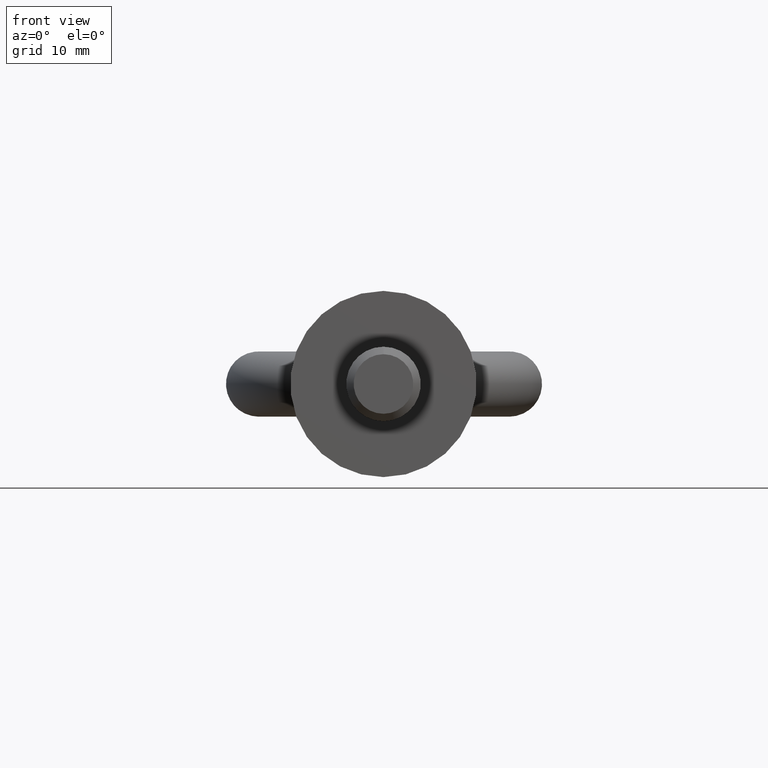
[diagram: clean part render]
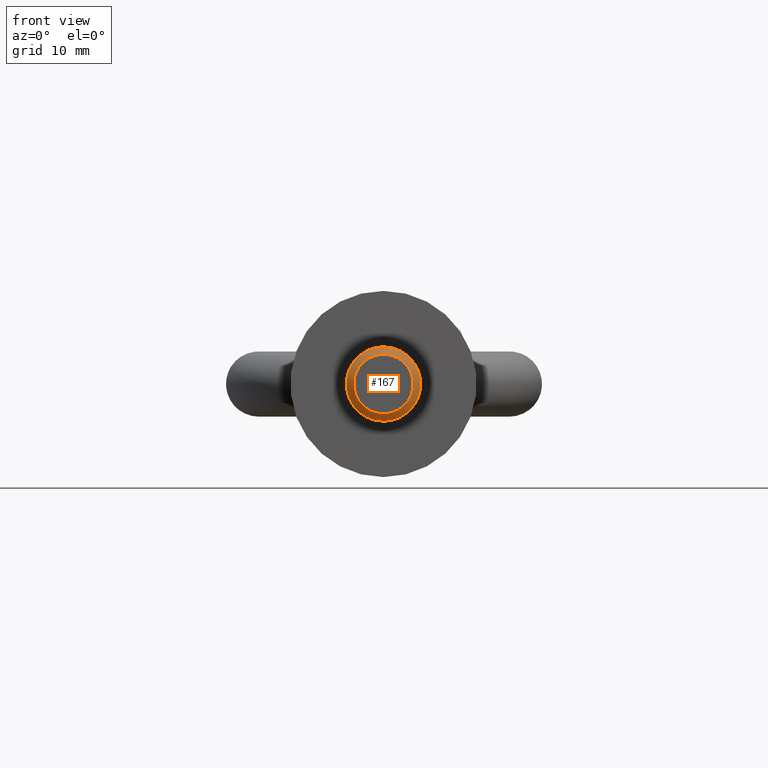
[diagram: same view with one face highlighted and labeled with its STEP entity id]
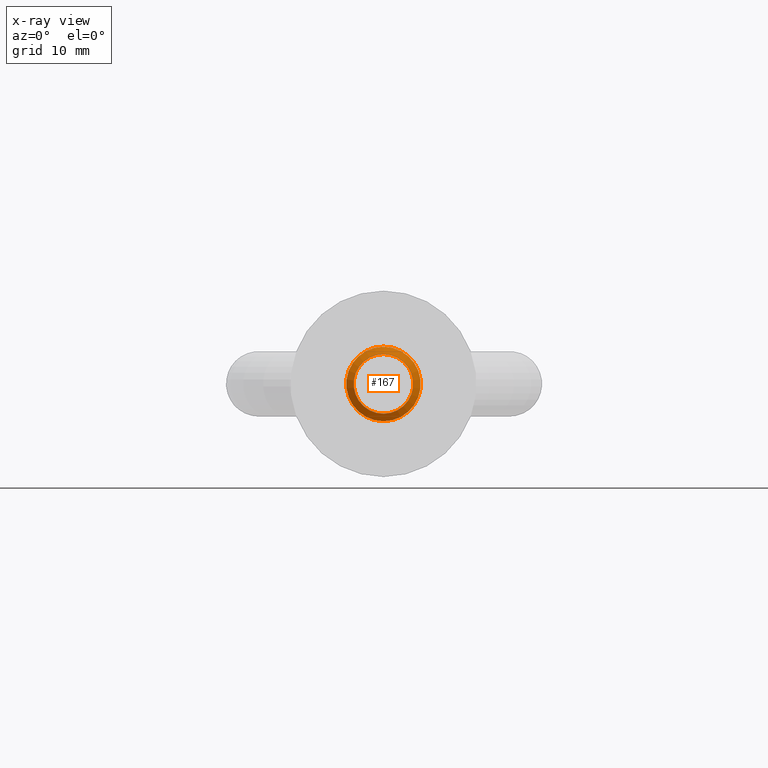
[diagram: x-ray of the same camera — body ghosted, the highlighted face saturated]
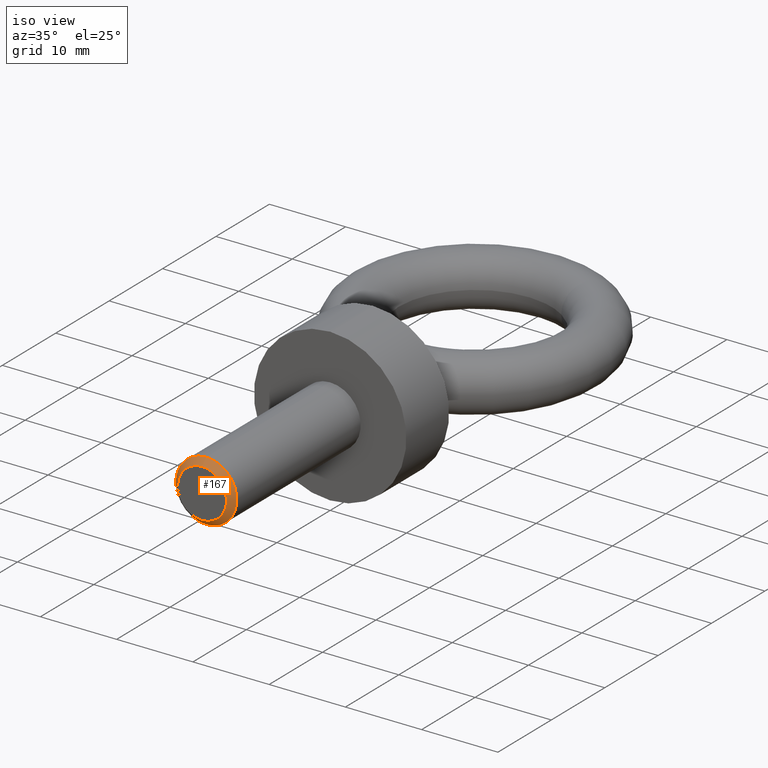
[diagram: same view with one face highlighted and labeled with its STEP entity id]
A machine part, front view. The second image highlights one B-rep face of the part: STEP entity #167.
The next image is the same camera in x-ray: the body ghosted, the highlighted face saturated — about 0% of this face is hidden behind the body in this view.
A second angle (iso view) of the same face is appended — the face is thin or edge-on in the first view.
In plain terms, the highlighted conical surface has half-angle 45 deg.
Its self-contained STEP definition (entity closure, byte-faithful):
#78=CONICAL_SURFACE('',#677,4.,45.);
#90=FACE_BOUND('',#250,.T.);
#91=FACE_BOUND('',#251,.T.);
#167=ADVANCED_FACE('',(#90,#91),#78,.T.);
#250=EDGE_LOOP('',(#481));
#251=EDGE_LOOP('',(#482));
#294=CIRCLE('',#640,3.2);
#295=CIRCLE('',#642,4.);
#481=ORIENTED_EDGE('',*,*,#564,.F.);
#482=ORIENTED_EDGE('',*,*,#565,.F.);
#507=VERTEX_POINT('',#1036);
#508=VERTEX_POINT('',#1039);
#564=EDGE_CURVE('',#507,#507,#294,.T.);
#565=EDGE_CURVE('',#508,#508,#295,.T.);
#640=AXIS2_PLACEMENT_3D('',#1035,#718,#719);
#642=AXIS2_PLACEMENT_3D('',#1038,#722,#723);
#677=AXIS2_PLACEMENT_3D('',#1556,#794,#795);
#718=DIRECTION('',(0.,-1.,0.));
#719=DIRECTION('',(0.,0.,1.));
#722=DIRECTION('',(0.,1.,0.));
#723=DIRECTION('',(0.,0.,1.));
#794=DIRECTION('',(0.,1.,0.));
#795=DIRECTION('',(0.,3.45562445413706E-18,1.));
#1035=CARTESIAN_POINT('',(0.,-24.,0.));
#1036=CARTESIAN_POINT('',(0.,-24.,3.2));
#1038=CARTESIAN_POINT('',(0.,-23.2,0.));
#1039=CARTESIAN_POINT('',(0.,-23.2,4.));
#1556=CARTESIAN_POINT('',(0.,-23.2,0.));